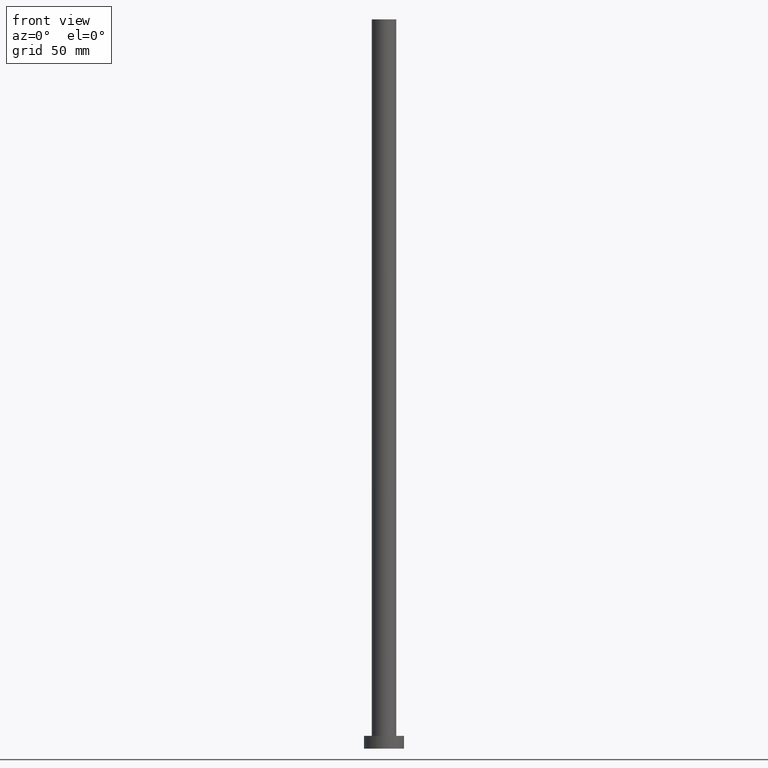
[diagram: clean part render]
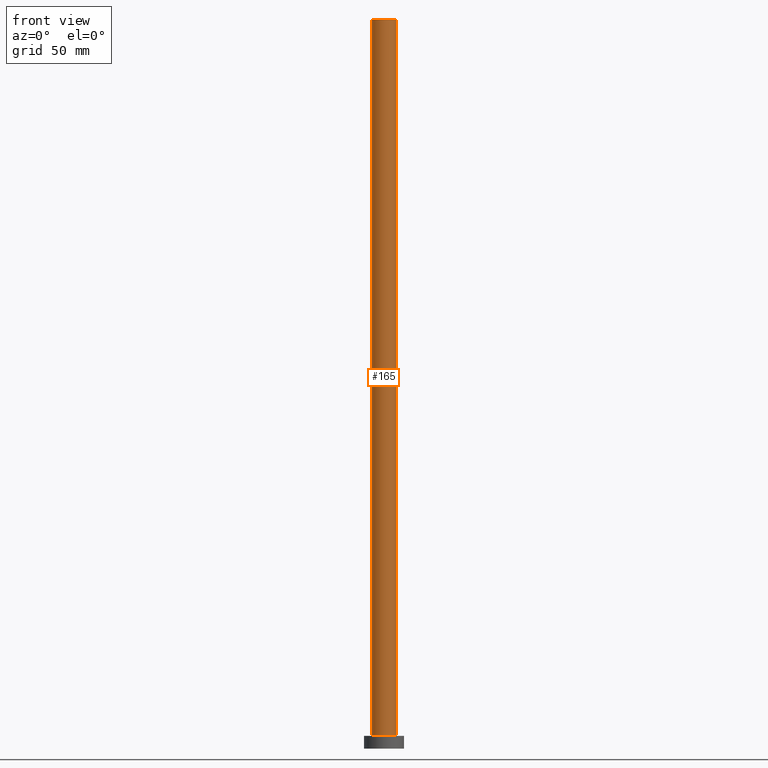
[diagram: same view with one face highlighted and labeled with its STEP entity id]
A machine part, front view. The second image highlights one B-rep face of the part: STEP entity #165.
In plain terms, the highlighted cylindrical surface (edge-blend (fillet) strip) has radius 6.75 mm, axis along (-0, -0, -1).
Its self-contained STEP definition (entity closure, byte-faithful):
#1 = EDGE_CURVE ( 'NONE', #122, #144, #81, .T. ) ;
#18 = CARTESIAN_POINT ( 'NONE',  ( 6.750000000000000000, 8.266365894244634333E-16, 400.0000000000000000 ) ) ;
#19 = CARTESIAN_POINT ( 'NONE',  ( 0.000000000000000000, 0.000000000000000000, 400.0000000000000000 ) ) ;
#21 = ORIENTED_EDGE ( 'NONE', *, *, #1, .T. ) ;
#24 = EDGE_LOOP ( 'NONE', ( #138, #58, #21, #98 ) ) ;
#33 = CYLINDRICAL_SURFACE ( 'NONE', #76, 6.750000000000000000 ) ;
#34 = DIRECTION ( 'NONE',  ( 1.000000000000000000, 0.000000000000000000, 0.000000000000000000 ) ) ;
#58 = ORIENTED_EDGE ( 'NONE', *, *, #203, .F. ) ;
#66 = DIRECTION ( 'NONE',  ( 1.000000000000000000, 0.000000000000000000, 0.000000000000000000 ) ) ;
#68 = CIRCLE ( 'NONE', #244, 6.750000000000000000 ) ;
#76 = AXIS2_PLACEMENT_3D ( 'NONE', #19, #110, #94 ) ;
#81 = LINE ( 'NONE', #245, #210 ) ;
#88 = CARTESIAN_POINT ( 'NONE',  ( -6.750000000000000000, 0.000000000000000000, 7.000000000000000000 ) ) ;
#90 = EDGE_CURVE ( 'NONE', #144, #186, #247, .T. ) ;
#94 = DIRECTION ( 'NONE',  ( -1.000000000000000000, 0.000000000000000000, 0.000000000000000000 ) ) ;
#98 = ORIENTED_EDGE ( 'NONE', *, *, #90, .T. ) ;
#105 = DIRECTION ( 'NONE',  ( -0.000000000000000000, -0.000000000000000000, -1.000000000000000000 ) ) ;
#108 = CARTESIAN_POINT ( 'NONE',  ( 0.000000000000000000, 0.000000000000000000, 400.0000000000000000 ) ) ;
#110 = DIRECTION ( 'NONE',  ( -0.000000000000000000, -0.000000000000000000, -1.000000000000000000 ) ) ;
#112 = CARTESIAN_POINT ( 'NONE',  ( -6.750000000000000000, 0.000000000000000000, 400.0000000000000000 ) ) ;
#122 = VERTEX_POINT ( 'NONE', #112 ) ;
#130 = CARTESIAN_POINT ( 'NONE',  ( 6.750000000000000000, 8.266365894244634333E-16, 400.0000000000000000 ) ) ;
#132 = CARTESIAN_POINT ( 'NONE',  ( 6.750000000000000000, 8.266365894244634333E-16, 7.000000000000000000 ) ) ;
#138 = ORIENTED_EDGE ( 'NONE', *, *, #151, .F. ) ;
#144 = VERTEX_POINT ( 'NONE', #88 ) ;
#151 = EDGE_CURVE ( 'NONE', #177, #186, #168, .T. ) ;
#165 = ADVANCED_FACE ( 'NONE', ( #211 ), #33, .T. ) ;
#167 = DIRECTION ( 'NONE',  ( 0.000000000000000000, 0.000000000000000000, 1.000000000000000000 ) ) ;
#168 = LINE ( 'NONE', #130, #193 ) ;
#177 = VERTEX_POINT ( 'NONE', #18 ) ;
#186 = VERTEX_POINT ( 'NONE', #132 ) ;
#193 = VECTOR ( 'NONE', #230, 1000.000000000000000 ) ;
#203 = EDGE_CURVE ( 'NONE', #122, #177, #68, .T. ) ;
#210 = VECTOR ( 'NONE', #105, 1000.000000000000000 ) ;
#211 = FACE_OUTER_BOUND ( 'NONE', #24, .T. ) ;
#215 = DIRECTION ( 'NONE',  ( 0.000000000000000000, 0.000000000000000000, 1.000000000000000000 ) ) ;
#229 = CARTESIAN_POINT ( 'NONE',  ( 0.000000000000000000, 0.000000000000000000, 7.000000000000000000 ) ) ;
#230 = DIRECTION ( 'NONE',  ( -0.000000000000000000, -0.000000000000000000, -1.000000000000000000 ) ) ;
#239 = AXIS2_PLACEMENT_3D ( 'NONE', #229, #167, #66 ) ;
#244 = AXIS2_PLACEMENT_3D ( 'NONE', #108, #215, #34 ) ;
#245 = CARTESIAN_POINT ( 'NONE',  ( -6.750000000000000000, 0.000000000000000000, 400.0000000000000000 ) ) ;
#247 = CIRCLE ( 'NONE', #239, 6.750000000000000000 ) ;